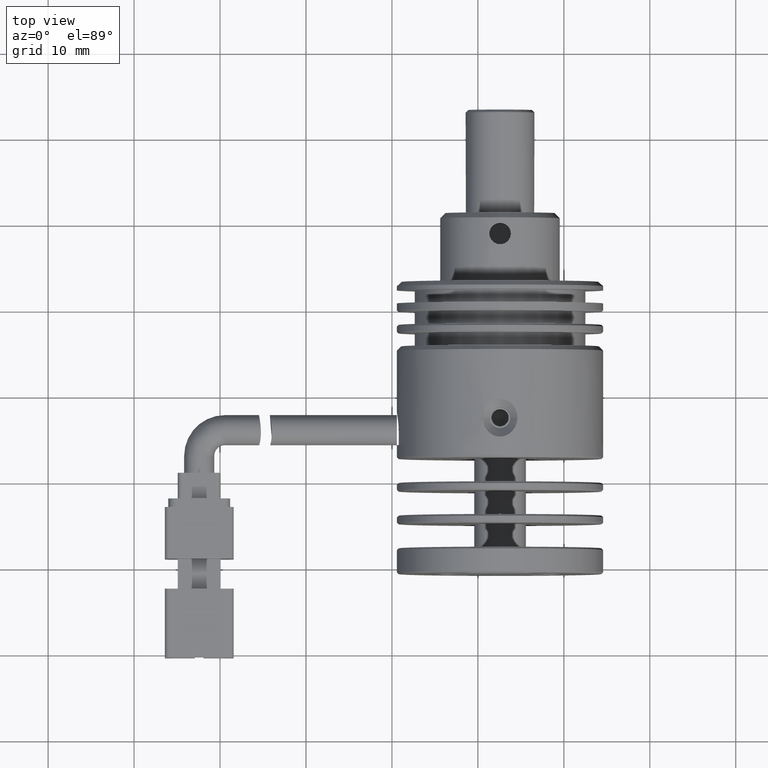
[diagram: clean part render]
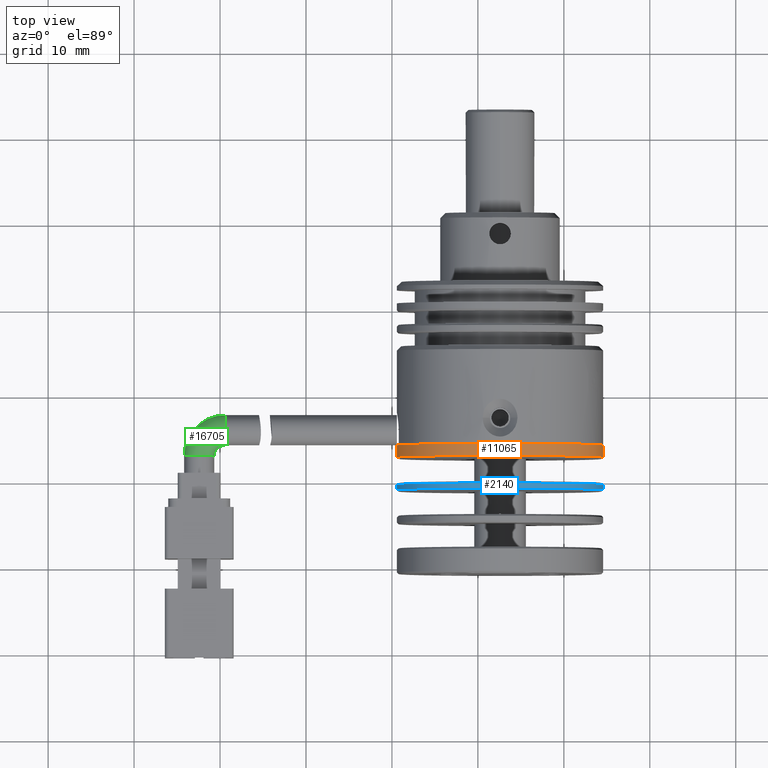
[diagram: same view with three faces highlighted in distinct colors, each labeled with its STEP entity id]
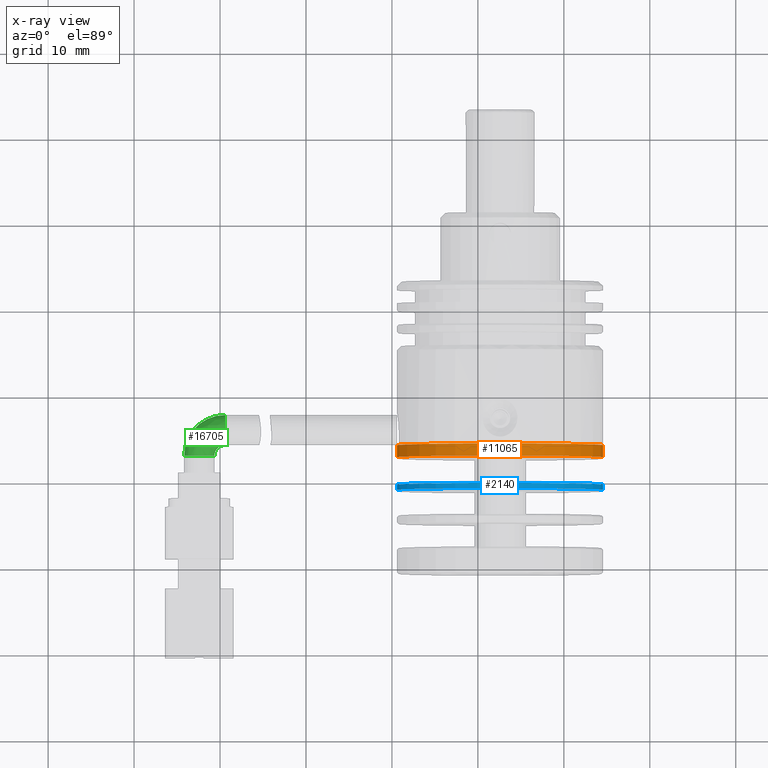
[diagram: x-ray of the same camera — body ghosted, the three highlighted faces saturated]
A machine part, top view with three faces highlighted in distinct colors.
The next image is the same camera in x-ray (body ghosted, the three faces saturated) — at least one of them is partly hidden behind the body in this view.
Their STEP definitions:

[orange] entity #11065 — the highlighted cylindrical surface (partial cylindrical patch) has radius 12 mm, axis along (0, -1, 0).
#94 = EDGE_CURVE ( 'NONE', #1911, #2698, #5716, .T. ) ;
#175 = CARTESIAN_POINT ( 'NONE',  ( 2.574933787635818900, -17.11493551001264600, 2.825964078340612100 ) ) ;
#1911 = VERTEX_POINT ( 'NONE', #2807 ) ;
#2698 = VERTEX_POINT ( 'NONE', #16768 ) ;
#2732 = AXIS2_PLACEMENT_3D ( 'NONE', #3805, #9754, #12638 ) ;
#2807 = CARTESIAN_POINT ( 'NONE',  ( 14.57493378763581600, -15.71493551001260500, -9.174035921659387000 ) ) ;
#3049 = ORIENTED_EDGE ( 'NONE', *, *, #3431, .F. ) ;
#3361 = EDGE_CURVE ( 'NONE', #8825, #9899, #13046, .T. ) ;
#3367 = DIRECTION ( 'NONE',  ( 0.0000000000000000000, -1.000000000000000000, 0.0000000000000000000 ) ) ;
#3431 = EDGE_CURVE ( 'NONE', #9899, #19141, #5362, .T. ) ;
#3535 = ORIENTED_EDGE ( 'NONE', *, *, #16720, .T. ) ;
#3805 = CARTESIAN_POINT ( 'NONE',  ( 2.574933787635818900, -15.71493551001260500, -9.174035921659385200 ) ) ;
#4796 = AXIS2_PLACEMENT_3D ( 'NONE', #6187, #16537, #7663 ) ;
#5165 = VECTOR ( 'NONE', #13821, 1000.000000000000000 ) ;
#5362 = CIRCLE ( 'NONE', #4796, 11.99999999999999600 ) ;
#5673 = DIRECTION ( 'NONE',  ( -0.0000000000000000000, -1.000000000000000000, -0.0000000000000000000 ) ) ;
#5716 = CIRCLE ( 'NONE', #2732, 11.99999999999999600 ) ;
#6187 = CARTESIAN_POINT ( 'NONE',  ( 2.574933787635818900, -17.11493551001264600, -9.174035921659385200 ) ) ;
#6777 = DIRECTION ( 'NONE',  ( 0.0000000000000000000, -1.000000000000000000, 0.0000000000000000000 ) ) ;
#7334 = EDGE_LOOP ( 'NONE', ( #8251, #19076, #3535, #3049, #7793 ) ) ;
#7663 = DIRECTION ( 'NONE',  ( 1.000000000000000000, 0.0000000000000000000, 0.0000000000000000000 ) ) ;
#7793 = ORIENTED_EDGE ( 'NONE', *, *, #3361, .F. ) ;
#7810 = VECTOR ( 'NONE', #6777, 1000.000000000000000 ) ;
#7891 = AXIS2_PLACEMENT_3D ( 'NONE', #12183, #3367, #9300 ) ;
#8022 = FACE_OUTER_BOUND ( 'NONE', #7334, .T. ) ;
#8150 = AXIS2_PLACEMENT_3D ( 'NONE', #14553, #5673, #16025 ) ;
#8251 = ORIENTED_EDGE ( 'NONE', *, *, #18217, .F. ) ;
#8825 = VERTEX_POINT ( 'NONE', #10244 ) ;
#8841 = CARTESIAN_POINT ( 'NONE',  ( -9.425066212364177100, -17.11493551001264600, -9.174035921659385200 ) ) ;
#9300 = DIRECTION ( 'NONE',  ( -1.000000000000000000, 0.0000000000000000000, 0.0000000000000000000 ) ) ;
#9754 = DIRECTION ( 'NONE',  ( 0.0000000000000000000, -1.000000000000000000, 0.0000000000000000000 ) ) ;
#9899 = VERTEX_POINT ( 'NONE', #175 ) ;
#10161 = CYLINDRICAL_SURFACE ( 'NONE', #7891, 11.99999999999999600 ) ;
#10244 = CARTESIAN_POINT ( 'NONE',  ( 14.57493378763581600, -17.11493551001264600, -9.174035921659387000 ) ) ;
#11065 = ADVANCED_FACE ( 'NONE', ( #8022 ), #10161, .T. ) ;
#12183 = CARTESIAN_POINT ( 'NONE',  ( 2.574933787635818900, -10.71493551001260300, -9.174035921659385200 ) ) ;
#12316 = CARTESIAN_POINT ( 'NONE',  ( -9.425066212364177100, -10.71493551001260300, -9.174035921659385200 ) ) ;
#12638 = DIRECTION ( 'NONE',  ( -1.000000000000000000, 0.0000000000000000000, 0.0000000000000000000 ) ) ;
#13046 = CIRCLE ( 'NONE', #8150, 11.99999999999999600 ) ;
#13084 = LINE ( 'NONE', #12316, #5165 ) ;
#13821 = DIRECTION ( 'NONE',  ( 0.0000000000000000000, -1.000000000000000000, 0.0000000000000000000 ) ) ;
#14553 = CARTESIAN_POINT ( 'NONE',  ( 2.574933787635818900, -17.11493551001264600, -9.174035921659385200 ) ) ;
#15690 = LINE ( 'NONE', #17097, #7810 ) ;
#16025 = DIRECTION ( 'NONE',  ( 1.000000000000000000, 0.0000000000000000000, 0.0000000000000000000 ) ) ;
#16537 = DIRECTION ( 'NONE',  ( -0.0000000000000000000, -1.000000000000000000, -0.0000000000000000000 ) ) ;
#16720 = EDGE_CURVE ( 'NONE', #2698, #19141, #13084, .T. ) ;
#16768 = CARTESIAN_POINT ( 'NONE',  ( -9.425066212364177100, -15.71493551001260500, -9.174035921659385200 ) ) ;
#17097 = CARTESIAN_POINT ( 'NONE',  ( 14.57493378763581600, -10.71493551001260300, -9.174035921659387000 ) ) ;
#18217 = EDGE_CURVE ( 'NONE', #1911, #8825, #15690, .T. ) ;
#19076 = ORIENTED_EDGE ( 'NONE', *, *, #94, .T. ) ;
#19141 = VERTEX_POINT ( 'NONE', #8841 ) ;

[blue] entity #2140 — the highlighted cylindrical surface (partial cylindrical patch) has radius 12 mm, axis along (0, -1, 0).
#609 = CARTESIAN_POINT ( 'NONE',  ( 2.574933787635818900, -20.31493551001257800, -9.174035921659385200 ) ) ;
#1363 = VERTEX_POINT ( 'NONE', #14543 ) ;
#2037 = CIRCLE ( 'NONE', #13258, 11.99999999999999600 ) ;
#2089 = EDGE_LOOP ( 'NONE', ( #16822, #5276, #8170, #11585 ) ) ;
#2113 = DIRECTION ( 'NONE',  ( -1.000000000000000000, 0.0000000000000000000, 0.0000000000000000000 ) ) ;
#2140 = ADVANCED_FACE ( 'NONE', ( #15639 ), #10338, .T. ) ;
#2607 = EDGE_CURVE ( 'NONE', #12866, #1363, #13092, .T. ) ;
#3268 = DIRECTION ( 'NONE',  ( 0.0000000000000000000, -1.000000000000000000, 0.0000000000000000000 ) ) ;
#4255 = CARTESIAN_POINT ( 'NONE',  ( 14.57493378763581600, -10.71493551001260300, -9.174035921659387000 ) ) ;
#5276 = ORIENTED_EDGE ( 'NONE', *, *, #11012, .T. ) ;
#5715 = CARTESIAN_POINT ( 'NONE',  ( 2.574933787635818900, -20.91493551001260100, -9.174035921659385200 ) ) ;
#6686 = CARTESIAN_POINT ( 'NONE',  ( 2.574933787635818900, -10.71493551001260300, -9.174035921659385200 ) ) ;
#7024 = CIRCLE ( 'NONE', #18134, 11.99999999999999600 ) ;
#7198 = DIRECTION ( 'NONE',  ( 1.000000000000000000, 0.0000000000000000000, 0.0000000000000000000 ) ) ;
#7641 = CARTESIAN_POINT ( 'NONE',  ( -9.425066212364177100, -10.71493551001260300, -9.174035921659385200 ) ) ;
#8170 = ORIENTED_EDGE ( 'NONE', *, *, #2607, .T. ) ;
#8540 = VERTEX_POINT ( 'NONE', #17631 ) ;
#8543 = EDGE_CURVE ( 'NONE', #13756, #8540, #18050, .T. ) ;
#10338 = CYLINDRICAL_SURFACE ( 'NONE', #13128, 11.99999999999999600 ) ;
#10955 = DIRECTION ( 'NONE',  ( 0.0000000000000000000, -1.000000000000000000, 0.0000000000000000000 ) ) ;
#11012 = EDGE_CURVE ( 'NONE', #13756, #12866, #2037, .T. ) ;
#11088 = DIRECTION ( 'NONE',  ( 0.0000000000000000000, -1.000000000000000000, 0.0000000000000000000 ) ) ;
#11585 = ORIENTED_EDGE ( 'NONE', *, *, #12317, .F. ) ;
#12317 = EDGE_CURVE ( 'NONE', #8540, #1363, #7024, .T. ) ;
#12866 = VERTEX_POINT ( 'NONE', #17172 ) ;
#13092 = LINE ( 'NONE', #7641, #16540 ) ;
#13128 = AXIS2_PLACEMENT_3D ( 'NONE', #6686, #11088, #17077 ) ;
#13258 = AXIS2_PLACEMENT_3D ( 'NONE', #609, #10955, #2113 ) ;
#13756 = VERTEX_POINT ( 'NONE', #16176 ) ;
#14082 = VECTOR ( 'NONE', #14706, 1000.000000000000000 ) ;
#14543 = CARTESIAN_POINT ( 'NONE',  ( -9.425066212364177100, -20.91493551001260100, -9.174035921659385200 ) ) ;
#14706 = DIRECTION ( 'NONE',  ( 0.0000000000000000000, -1.000000000000000000, 0.0000000000000000000 ) ) ;
#15639 = FACE_OUTER_BOUND ( 'NONE', #2089, .T. ) ;
#16064 = DIRECTION ( 'NONE',  ( -0.0000000000000000000, -1.000000000000000000, -0.0000000000000000000 ) ) ;
#16176 = CARTESIAN_POINT ( 'NONE',  ( 14.57493378763581600, -20.31493551001257800, -9.174035921659387000 ) ) ;
#16540 = VECTOR ( 'NONE', #3268, 1000.000000000000000 ) ;
#16822 = ORIENTED_EDGE ( 'NONE', *, *, #8543, .F. ) ;
#17077 = DIRECTION ( 'NONE',  ( -1.000000000000000000, 0.0000000000000000000, 0.0000000000000000000 ) ) ;
#17172 = CARTESIAN_POINT ( 'NONE',  ( -9.425066212364177100, -20.31493551001257800, -9.174035921659385200 ) ) ;
#17631 = CARTESIAN_POINT ( 'NONE',  ( 14.57493378763581600, -20.91493551001260100, -9.174035921659387000 ) ) ;
#18050 = LINE ( 'NONE', #4255, #14082 ) ;
#18134 = AXIS2_PLACEMENT_3D ( 'NONE', #5715, #16064, #7198 ) ;

[green] entity #16705 — the highlighted face is a freeform B-spline surface patch.
#29 = ORIENTED_EDGE ( 'NONE', *, *, #16205, .T. ) ;
#278 = CARTESIAN_POINT ( 'NONE',  ( -32.42506621236419300, -16.96493551001256300, -9.074035921659396200 ) ) ;
#298 = AXIS2_PLACEMENT_3D ( 'NONE', #9310, #438, #10789 ) ;
#432 = CARTESIAN_POINT ( 'NONE',  ( -34.17506621236419300, -14.18244993128476300, -5.574035921659392700 ) ) ;
#438 = DIRECTION ( 'NONE',  ( 3.590459175806343900E-017, 1.137978600240785100E-015, -1.000000000000000000 ) ) ;
#1368 = CIRCLE ( 'NONE', #10623, 1.750000000000001600 ) ;
#1481 = ORIENTED_EDGE ( 'NONE', *, *, #13940, .F. ) ;
#1787 = DIRECTION ( 'NONE',  ( -1.000000000000000000, 0.0000000000000000000, 0.0000000000000000000 ) ) ;
#1939 = CARTESIAN_POINT ( 'NONE',  ( -29.42506621236418600, -12.21493551001255700, -5.574035921659390900 ) ) ;
#2006 = VERTEX_POINT ( 'NONE', #7596 ) ;
#2342 = CIRCLE ( 'NONE', #15438, 1.249999999999997600 ) ;
#3425 = CARTESIAN_POINT ( 'NONE',  ( -30.67506621236419000, -16.23270246297893500, -5.574035921659395300 ) ) ;
#3584 = CIRCLE ( 'NONE', #298, 4.749999999999999100 ) ;
#3871 = EDGE_CURVE ( 'NONE', #2006, #10280, #2342, .T. ) ;
#4238 = DIRECTION ( 'NONE',  ( 3.590459175806343900E-017, 1.137978600240785100E-015, -1.000000000000000000 ) ) ;
#4427 = ORIENTED_EDGE ( 'NONE', *, *, #4477, .F. ) ;
#4477 = EDGE_CURVE ( 'NONE', #2006, #5858, #1368, .T. ) ;
#4878 = CARTESIAN_POINT ( 'NONE',  ( -29.42506621236418600, -15.71493551001255500, -5.574035921659395300 ) ) ;
#5033 = DIRECTION ( 'NONE',  ( -1.000000000000000000, 1.861400131669680400E-016, -3.590459175806322900E-017 ) ) ;
#5511 = CARTESIAN_POINT ( 'NONE',  ( -29.42506621236419000, -15.71493551001256600, -9.074035921659394400 ) ) ;
#5858 = VERTEX_POINT ( 'NONE', #14131 ) ;
#6397 = CARTESIAN_POINT ( 'NONE',  ( -30.67506621236419000, -16.23270246297893100, -9.074035921659396200 ) ) ;
#7044 = FACE_OUTER_BOUND ( 'NONE', #10203, .T. ) ;
#7596 = CARTESIAN_POINT ( 'NONE',  ( -30.67506621236419000, -16.96493551001256300, -9.074035921659396200 ) ) ;
#7809 = CARTESIAN_POINT ( 'NONE',  ( -32.20755179109200100, -12.21493551001255000, -9.074035921659389100 ) ) ;
#7863 = CARTESIAN_POINT ( 'NONE',  ( -29.42506621236419000, -15.71493551001255500, -9.074035921659394400 ) ) ;
#8000 = AXIS2_PLACEMENT_3D ( 'NONE', #13910, #5033, #15395 ) ;
#9308 = CARTESIAN_POINT ( 'NONE',  ( -34.17506621236419300, -16.96493551001257000, -5.574035921659396200 ) ) ;
#9310 = CARTESIAN_POINT ( 'NONE',  ( -29.42506621236419000, -16.96493551001256300, -9.074035921659396200 ) ) ;
#9424 =( BOUNDED_SURFACE ( )  B_SPLINE_SURFACE ( 3, 3, ( 
 ( #10716, #16678, #7809, #18172 ),
 ( #9308, #432, #10784, #1939 ),
 ( #12252, #3425, #13764, #4878 ),
 ( #15254, #6397, #16747, #7863 ) ),
 .UNSPECIFIED., .F., .F., .T. ) 
 B_SPLINE_SURFACE_WITH_KNOTS ( ( 4, 4 ),
 ( 4, 4 ),
 ( 0.0000000000000000000, 1.000000000000000000 ),
 ( 0.0000000000000000000, 1.000000000000000000 ),
 .UNSPECIFIED. ) 
 GEOMETRIC_REPRESENTATION_ITEM ( )  RATIONAL_B_SPLINE_SURFACE ( (
 ( 1.000000000000000000, 0.8047378541243649400, 0.8047378541243649400, 1.000000000000000000),
 ( 0.3333333333333333700, 0.2682459513747883500, 0.2682459513747883500, 0.3333333333333333700),
 ( 0.3333333333333333700, 0.2682459513747883500, 0.2682459513747883500, 0.3333333333333333700),
 ( 1.000000000000000000, 0.8047378541243649400, 0.8047378541243649400, 1.000000000000000000) ) ) 
 REPRESENTATION_ITEM ( '' )  SURFACE ( )  );
#10203 = EDGE_LOOP ( 'NONE', ( #4427, #12259, #29, #1481 ) ) ;
#10280 = VERTEX_POINT ( 'NONE', #5511 ) ;
#10615 = DIRECTION ( 'NONE',  ( -4.004532030177548000E-016, -1.000000000000000000, -1.137978600240785100E-015 ) ) ;
#10623 = AXIS2_PLACEMENT_3D ( 'NONE', #278, #10615, #1787 ) ;
#10716 = CARTESIAN_POINT ( 'NONE',  ( -34.17506621236419300, -16.96493551001256300, -9.074035921659396200 ) ) ;
#10784 = CARTESIAN_POINT ( 'NONE',  ( -32.20755179109199400, -12.21493551001255700, -5.574035921659390000 ) ) ;
#10789 = DIRECTION ( 'NONE',  ( 0.0000000000000000000, 1.000000000000000000, 1.095614826932720400E-015 ) ) ;
#12252 = CARTESIAN_POINT ( 'NONE',  ( -30.67506621236419000, -16.96493551001257000, -5.574035921659396200 ) ) ;
#12259 = ORIENTED_EDGE ( 'NONE', *, *, #3871, .T. ) ;
#13118 = CARTESIAN_POINT ( 'NONE',  ( -29.42506621236419000, -12.21493551001256400, -9.074035921659390900 ) ) ;
#13126 = CARTESIAN_POINT ( 'NONE',  ( -29.42506621236419000, -16.96493551001256300, -9.074035921659396200 ) ) ;
#13764 = CARTESIAN_POINT ( 'NONE',  ( -30.15729925939782800, -15.71493551001255500, -5.574035921659395300 ) ) ;
#13910 = CARTESIAN_POINT ( 'NONE',  ( -29.42506621236419000, -13.96493551001256400, -9.074035921659392700 ) ) ;
#13940 = EDGE_CURVE ( 'NONE', #5858, #14761, #3584, .T. ) ;
#14131 = CARTESIAN_POINT ( 'NONE',  ( -34.17506621236418600, -16.96493551001256300, -9.074035921659396200 ) ) ;
#14609 = DIRECTION ( 'NONE',  ( 0.0000000000000000000, 1.000000000000000000, 1.387778780781448400E-015 ) ) ;
#14761 = VERTEX_POINT ( 'NONE', #13118 ) ;
#15254 = CARTESIAN_POINT ( 'NONE',  ( -30.67506621236419000, -16.96493551001256300, -9.074035921659396200 ) ) ;
#15395 = DIRECTION ( 'NONE',  ( 0.0000000000000000000, 1.000000000000000000, 9.912705577010326500E-016 ) ) ;
#15438 = AXIS2_PLACEMENT_3D ( 'NONE', #13126, #4238, #14609 ) ;
#15686 = CIRCLE ( 'NONE', #8000, 1.749999999999999800 ) ;
#16205 = EDGE_CURVE ( 'NONE', #10280, #14761, #15686, .T. ) ;
#16678 = CARTESIAN_POINT ( 'NONE',  ( -34.17506621236419300, -14.18244993128476100, -9.074035921659392700 ) ) ;
#16705 = ADVANCED_FACE ( 'NONE', ( #7044 ), #9424, .T. ) ;
#16747 = CARTESIAN_POINT ( 'NONE',  ( -30.15729925939782800, -15.71493551001255500, -9.074035921659394400 ) ) ;
#18172 = CARTESIAN_POINT ( 'NONE',  ( -29.42506621236419000, -12.21493551001255000, -9.074035921659390900 ) ) ;